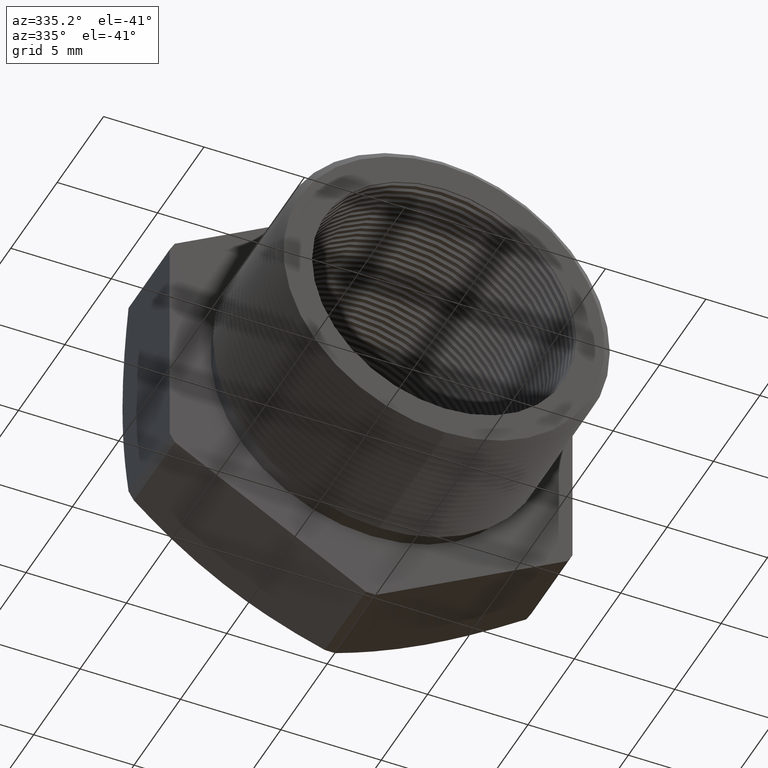
[diagram: clean part render]
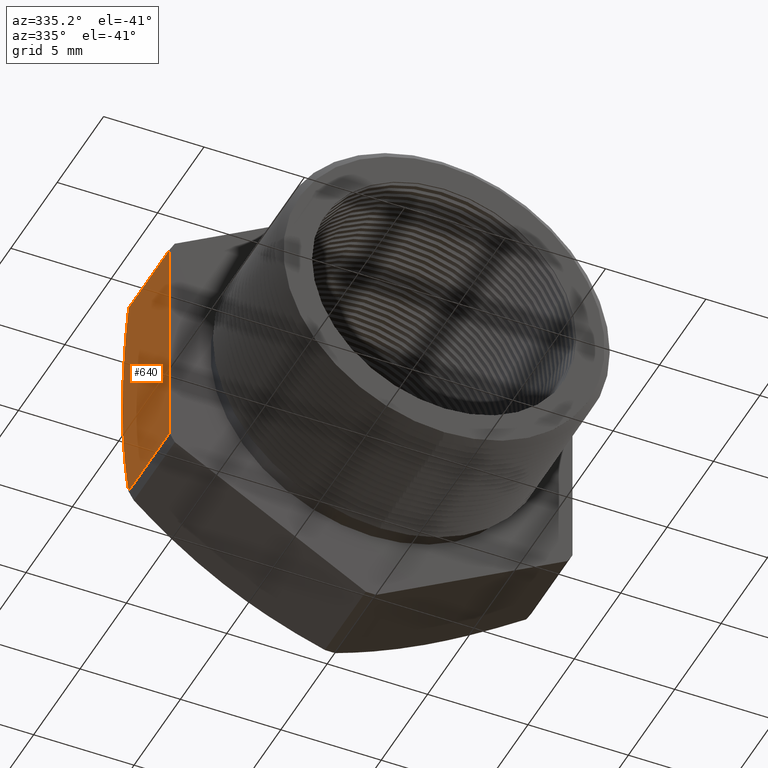
[diagram: same view with one face highlighted and labeled with its STEP entity id]
A machine part, auxiliary view. The second image highlights one B-rep face of the part: STEP entity #640.
In plain terms, the highlighted planar face has unit normal (-1, 0, 0).
Its self-contained STEP definition (entity closure, byte-faithful):
#9 = ORIENTED_EDGE ( 'NONE', *, *, #10, .F. ) ;
#10 = EDGE_CURVE ( 'NONE', #426, #474, #1532, .T. ) ;
#334 = VERTEX_POINT ( 'NONE', #2146 ) ;
#352 = VERTEX_POINT ( 'NONE', #2170 ) ;
#381 = EDGE_CURVE ( 'NONE', #474, #466, #2238, .T. ) ;
#423 = EDGE_CURVE ( 'NONE', #334, #426, #2343, .T. ) ;
#426 = VERTEX_POINT ( 'NONE', #2333 ) ;
#466 = VERTEX_POINT ( 'NONE', #2436 ) ;
#474 = VERTEX_POINT ( 'NONE', #2422 ) ;
#628 = ORIENTED_EDGE ( 'NONE', *, *, #381, .F. ) ;
#632 = EDGE_CURVE ( 'NONE', #352, #466, #2691, .T. ) ;
#635 = ORIENTED_EDGE ( 'NONE', *, *, #632, .T. ) ;
#640 = ADVANCED_FACE ( 'NONE', ( #2741 ), #2740, .T. ) ;
#641 = EDGE_LOOP ( 'NONE', ( #642, #644, #635, #628, #9 ) ) ;
#642 = ORIENTED_EDGE ( 'NONE', *, *, #423, .F. ) ;
#644 = ORIENTED_EDGE ( 'NONE', *, *, #649, .T. ) ;
#649 = EDGE_CURVE ( 'NONE', #334, #352, #2776, .T. ) ;
#1525 = DIRECTION ( 'NONE',  ( 0.0000000000000000000, 0.0000000000000000000, -1.000000000000000000 ) ) ;
#1526 = VECTOR ( 'NONE', #1525, 39.37007874015748100 ) ;
#1527 = CARTESIAN_POINT ( 'NONE',  ( -0.3949999999999999600, 0.2075548905829479300, 0.0000000000000000000 ) ) ;
#1532 = LINE ( 'NONE', #1527, #1526 ) ;
#2146 = CARTESIAN_POINT ( 'NONE',  ( -0.3949999999999999600, 0.3817680770869766300, 0.2162061284977833100 ) ) ;
#2170 = CARTESIAN_POINT ( 'NONE',  ( -0.3949999999999999600, 0.4075548905829479200, 0.0000000000000000000 ) ) ;
#2235 = DIRECTION ( 'NONE',  ( 0.0000000000000000000, 1.000000000000000000, 0.0000000000000000000 ) ) ;
#2236 = VECTOR ( 'NONE', #2235, 39.37007874015748100 ) ;
#2237 = CARTESIAN_POINT ( 'NONE',  ( -0.3949999999999999600, 0.0000000000000000000, -0.2162061284977833100 ) ) ;
#2238 = LINE ( 'NONE', #2237, #2236 ) ;
#2333 = CARTESIAN_POINT ( 'NONE',  ( -0.3949999999999999600, 0.2075548905829479300, 0.2162061284977833100 ) ) ;
#2340 = DIRECTION ( 'NONE',  ( -0.0000000000000000000, -1.000000000000000000, -0.0000000000000000000 ) ) ;
#2341 = VECTOR ( 'NONE', #2340, 39.37007874015748100 ) ;
#2342 = CARTESIAN_POINT ( 'NONE',  ( -0.3949999999999999600, 0.0000000000000000000, 0.2162061284977833100 ) ) ;
#2343 = LINE ( 'NONE', #2342, #2341 ) ;
#2422 = CARTESIAN_POINT ( 'NONE',  ( -0.3949999999999999600, 0.2075548905829479300, -0.2162061284977833100 ) ) ;
#2436 = CARTESIAN_POINT ( 'NONE',  ( -0.3949999999999999600, 0.3817680770869766300, -0.2162061284977833100 ) ) ;
#2691 = B_SPLINE_CURVE_WITH_KNOTS ( 'NONE', 3,
 ( #2747, #2746, #2745, #2744, #2743, #2742 ),
 .UNSPECIFIED., .F., .F.,
 ( 4, 2, 4 ),
 ( 0.02811047610233889300, 0.03085359037390535800, 0.03359670464547182000 ),
 .UNSPECIFIED. ) ;
#2733 = DIRECTION ( 'NONE',  ( 0.0000000000000000000, 0.0000000000000000000, 1.000000000000000000 ) ) ;
#2734 = DIRECTION ( 'NONE',  ( -1.000000000000000000, 0.0000000000000000000, 0.0000000000000000000 ) ) ;
#2735 = CARTESIAN_POINT ( 'NONE',  ( -0.3949999999999999600, 0.4075548905829479700, 0.2280533563299023400 ) ) ;
#2736 = AXIS2_PLACEMENT_3D ( 'NONE', #2735, #2734, #2733 ) ;
#2740 = PLANE ( 'NONE',  #2736 ) ;
#2741 = FACE_OUTER_BOUND ( 'NONE', #641, .T. ) ;
#2742 = CARTESIAN_POINT ( 'NONE',  ( -0.3949999999999999600, 0.3817680770869766300, -0.2162061284977833100 ) ) ;
#2743 = CARTESIAN_POINT ( 'NONE',  ( -0.3950000000000000200, 0.3897411411158606700, -0.1805949250355349800 ) ) ;
#2744 = CARTESIAN_POINT ( 'NONE',  ( -0.3949999999999999100, 0.3963016774528892400, -0.1444221750803203200 ) ) ;
#2745 = CARTESIAN_POINT ( 'NONE',  ( -0.3949999999999999600, 0.4052021354330028700, -0.07226365342510569800 ) ) ;
#2746 = CARTESIAN_POINT ( 'NONE',  ( -0.3949999999999999600, 0.4075548905829479200, -0.03615071496385630100 ) ) ;
#2747 = CARTESIAN_POINT ( 'NONE',  ( -0.3949999999999999600, 0.4075548905829479200, 0.0000000000000000000 ) ) ;
#2766 = CARTESIAN_POINT ( 'NONE',  ( -0.3949999999999999600, 0.4075548905829479200, 0.0000000000000000000 ) ) ;
#2767 = CARTESIAN_POINT ( 'NONE',  ( -0.3949999999999999600, 0.4075548905829479700, 0.03612954301674540400 ) ) ;
#2768 = CARTESIAN_POINT ( 'NONE',  ( -0.3950000000000000700, 0.4052039801787657400, 0.07229683291633771900 ) ) ;
#2769 = CARTESIAN_POINT ( 'NONE',  ( -0.3950000000000000200, 0.3984971256823441900, 0.1265988345955461600 ) ) ;
#2770 = CARTESIAN_POINT ( 'NONE',  ( -0.3949999999999999100, 0.3957288236683488800, 0.1447566914895557200 ) ) ;
#2771 = CARTESIAN_POINT ( 'NONE',  ( -0.3949999999999999100, 0.3893452266422921500, 0.1806961926986594400 ) ) ;
#2772 = CARTESIAN_POINT ( 'NONE',  ( -0.3949999999999999600, 0.3857293561114502100, 0.1985133177038116400 ) ) ;
#2773 = CARTESIAN_POINT ( 'NONE',  ( -0.3949999999999999600, 0.3817680770869766300, 0.2162061284977833100 ) ) ;
#2776 = B_SPLINE_CURVE_WITH_KNOTS ( 'NONE', 3,
 ( #2773, #2772, #2771, #2770, #2769, #2768, #2767, #2766 ),
 .UNSPECIFIED., .F., .F.,
 ( 4, 2, 2, 4 ),
 ( 0.02262746061158046200, 0.02399821448427007200, 0.02536896835695967900, 0.02811047610233889300 ),
 .UNSPECIFIED. ) ;